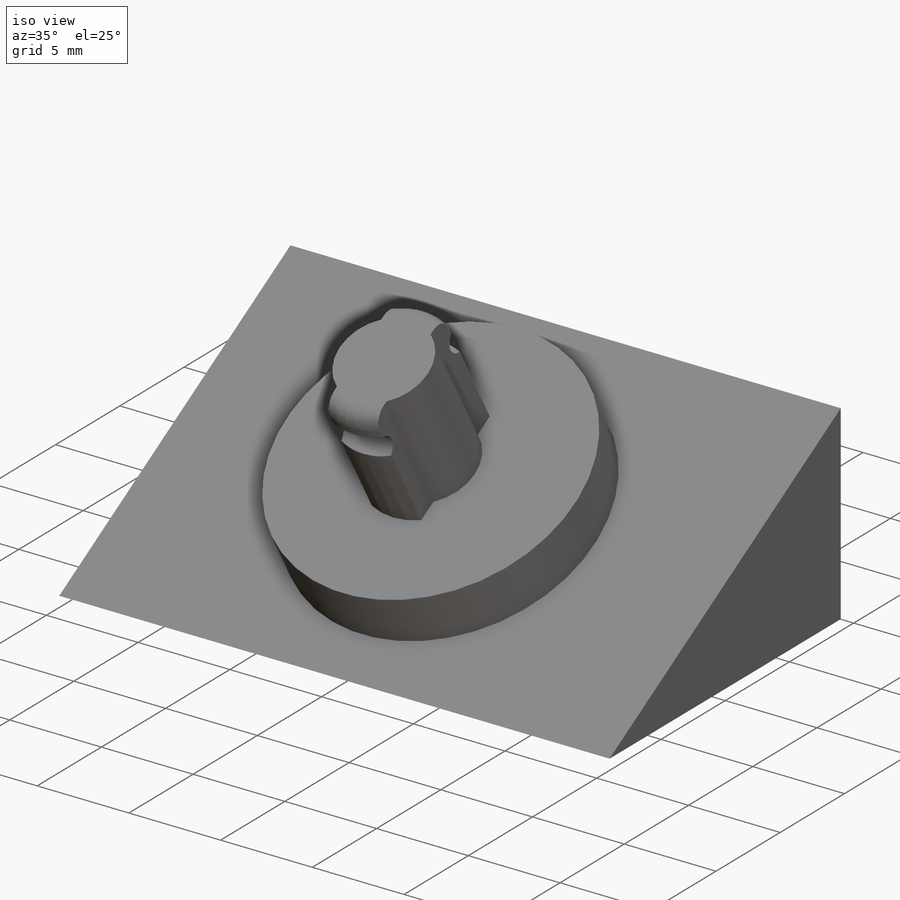
[diagram: iso view]
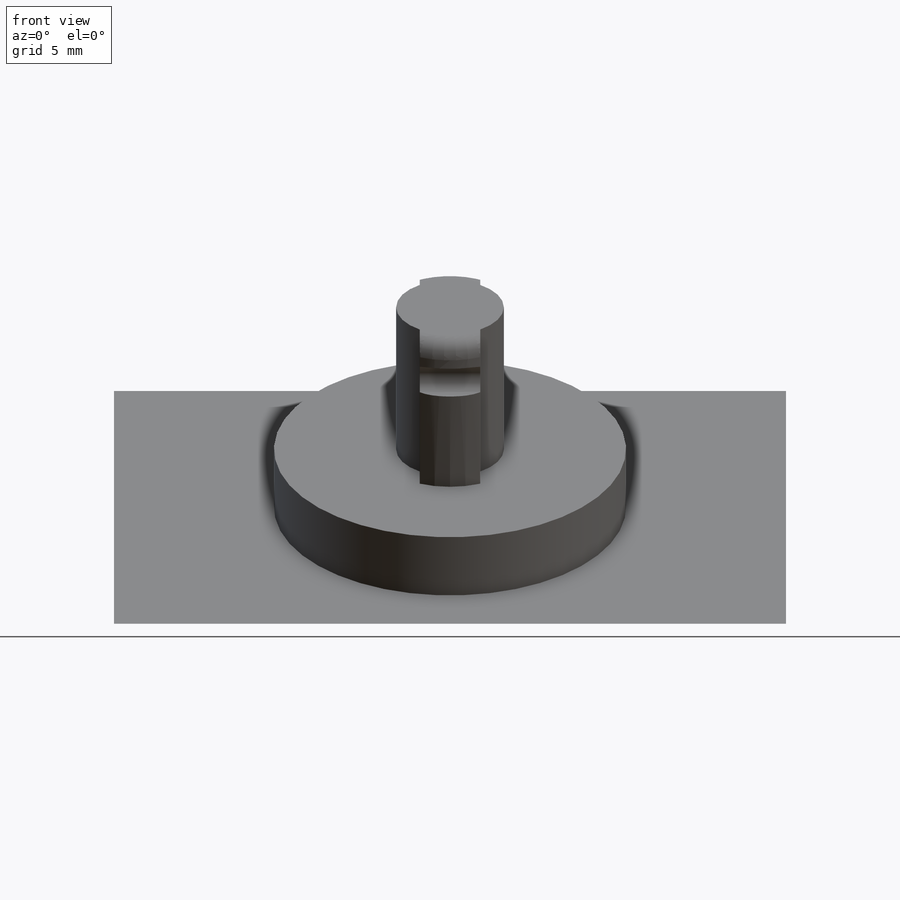
[diagram: front view]
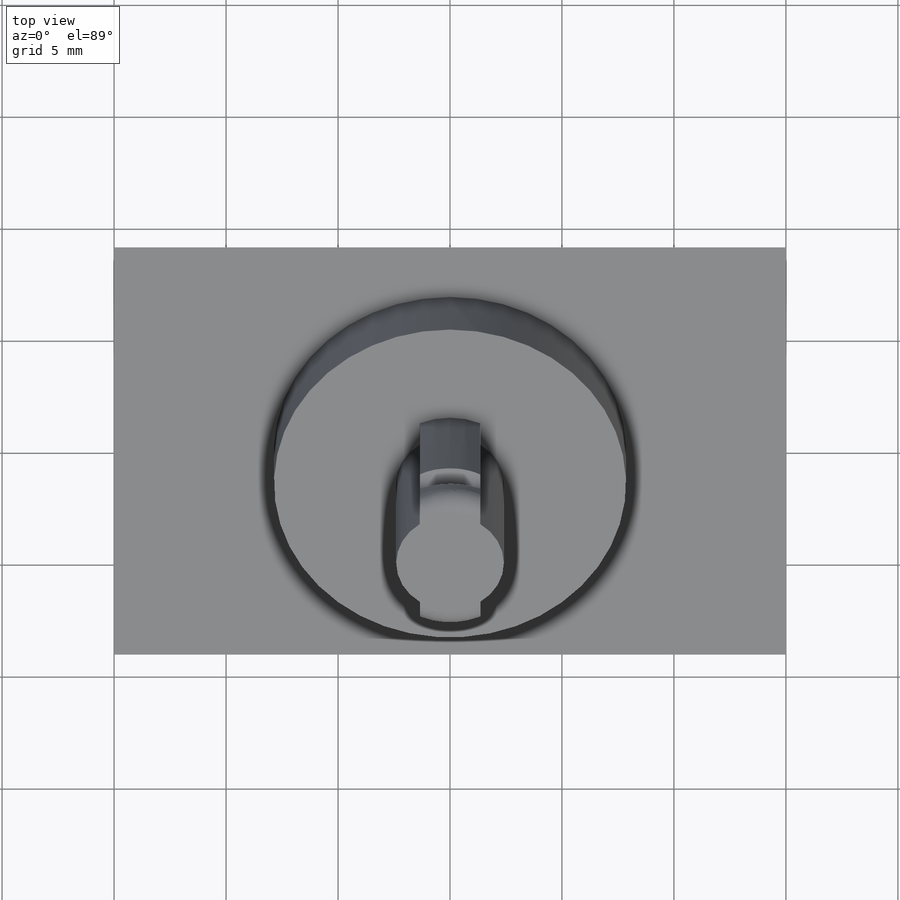
[diagram: top view]
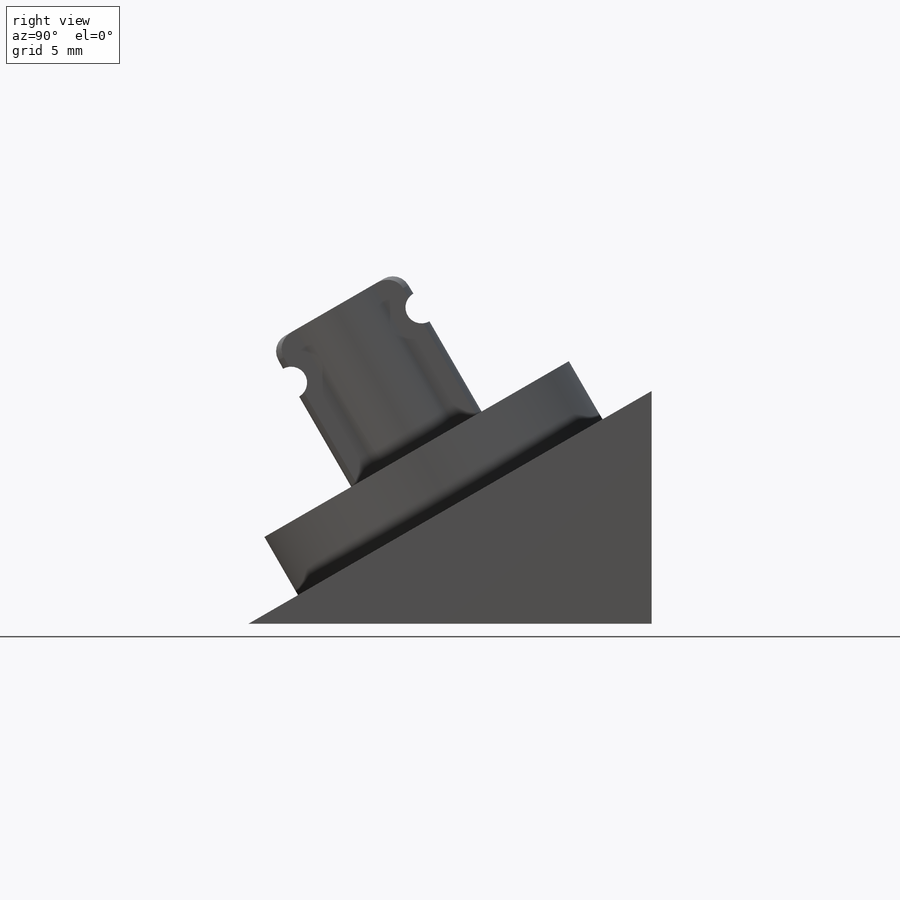
[diagram: right view]
SOLIDWORKS PART (.sldprt)
format: sldprt  version: not decoded by parser v0  size: 225,792 bytes
history: native  units: mm
features: sketch x4, extrude x3, material x1, cut_extrude x1, fillet x1 (+16 scaffold rows collapsed)
feature tree (26):
  scaffold x16  (default folders/planes/origin — collapsed)
  material  "Material <not specified>"
  sketch  "Sketch8"  dims[c1.D1=18.0mm c1.D2=30.0mm c2.D2=30.0deg]
  extrude  "Boss-Extrude4"  Depth=30mm
  sketch  "Sketch3"  dims[D1=15.72mm D2=9.0mm]
  extrude  "Boss-Extrude2"  Depth=3mm
  sketch  "Sketch5"  dims[c1.D1=4.81mm c1.D3=6.72mm c1.D2=2.7mm c2.D3=6.72mm]
  extrude  "Boss-Extrude3"  Depth=7.32mm
  sketch  "Sketch6"  dims[c1.D1=5.29mm c1.D2=5.37mm c2.D1=5.29mm c2.D2=5.37mm]
  cut_extrude  "Cut-Extrude2"  [1 undecoded]
  fillet  "Fillet5"  Radius=0.8mm
decode coverage: 8 of 9 modeling features carry decoded parameters
note: 1 parameter value undecoded
note: suppression state not decoded; provenance and decode notes live in map.json
